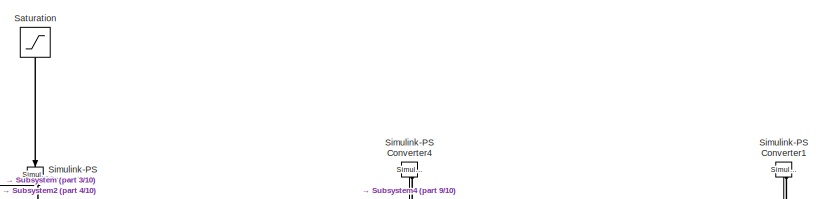
[diagram: root canvas - part 1/10, top center region]
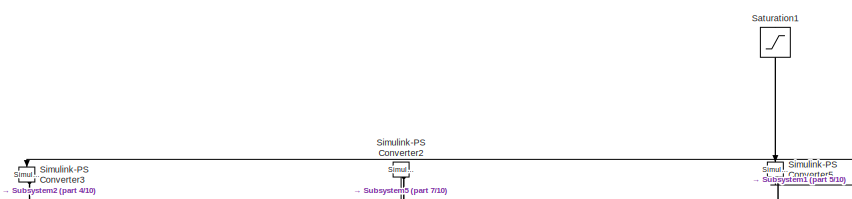
[diagram: root canvas - part 2/10, top center region]
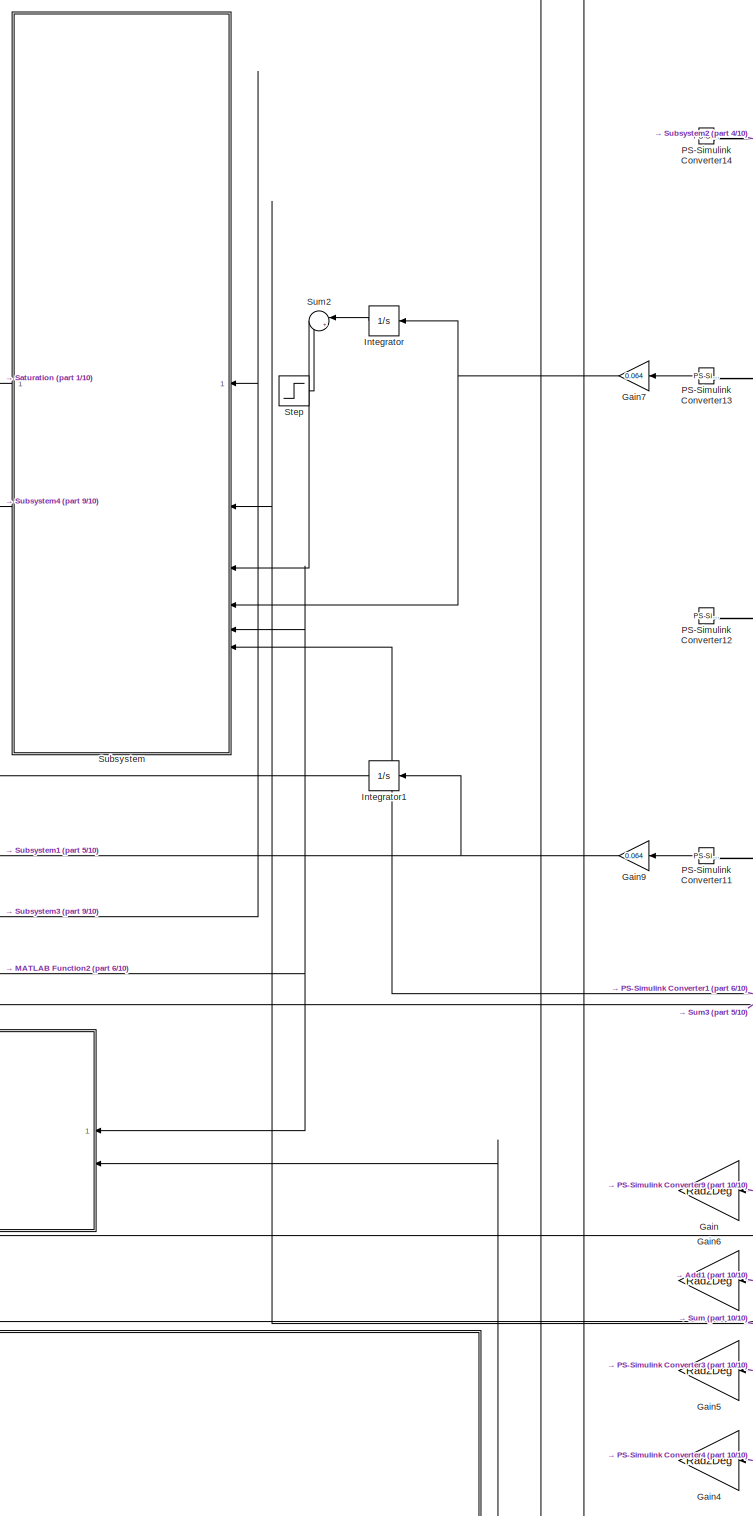
[diagram: root canvas - part 3/10, middle left region]
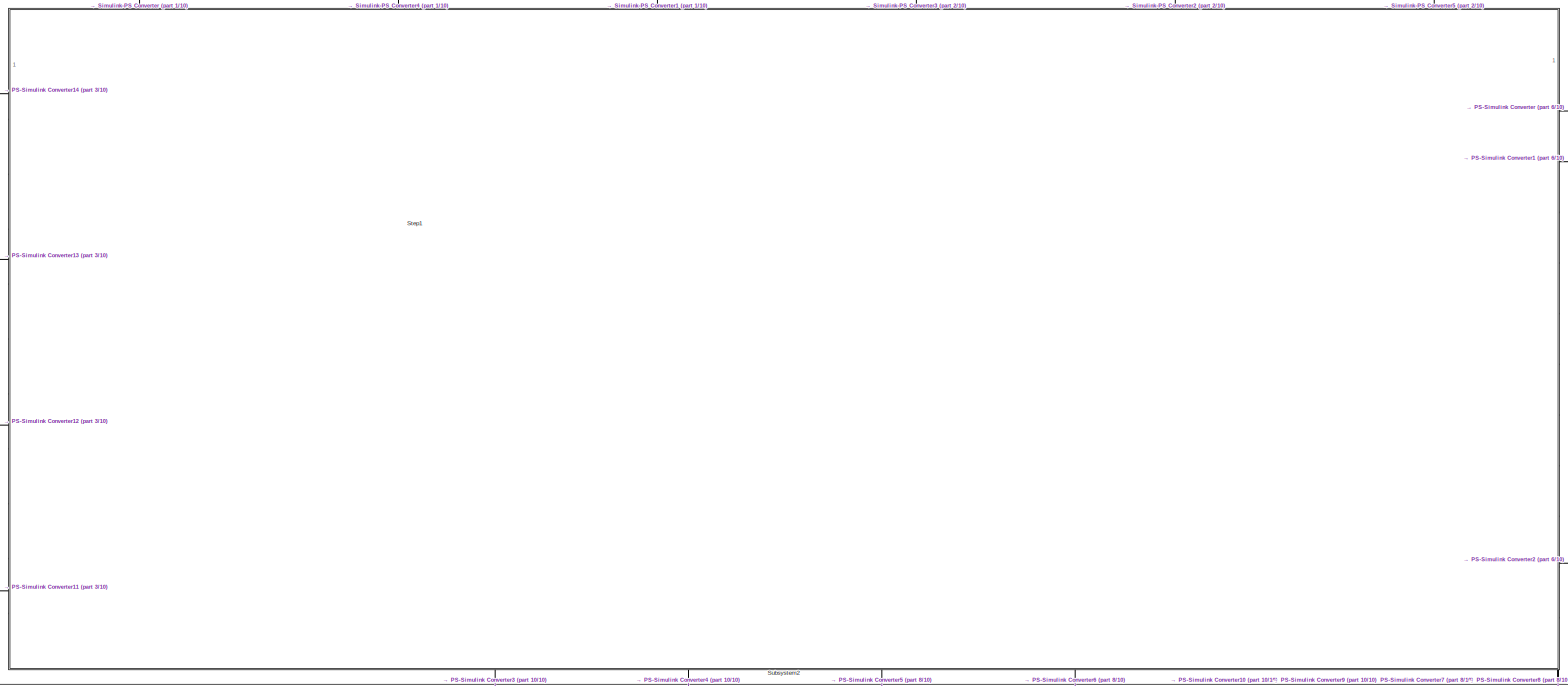
[diagram: root canvas - part 4/10, central region]
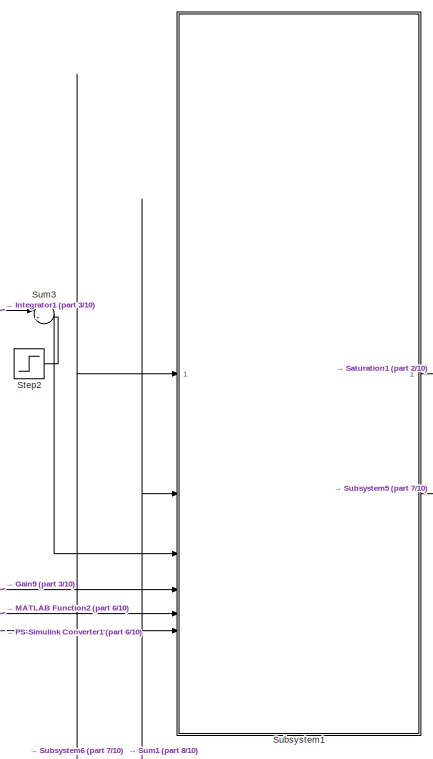
[diagram: root canvas - part 5/10, top right region]
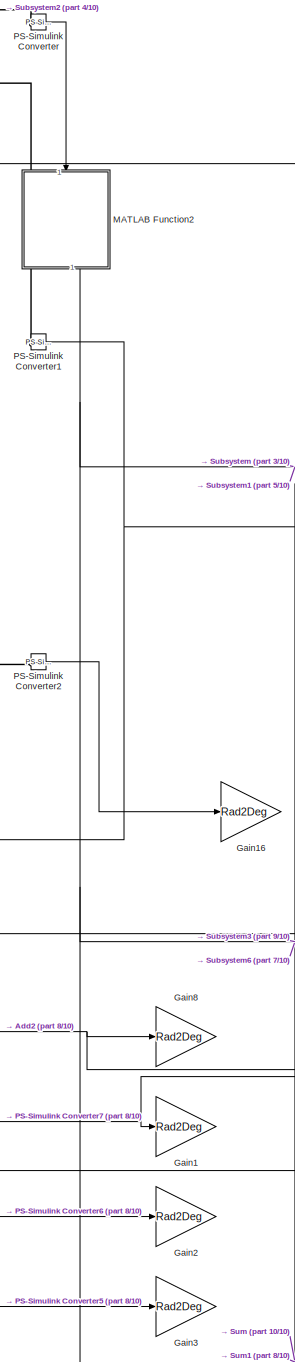
[diagram: root canvas - part 6/10, middle right region]
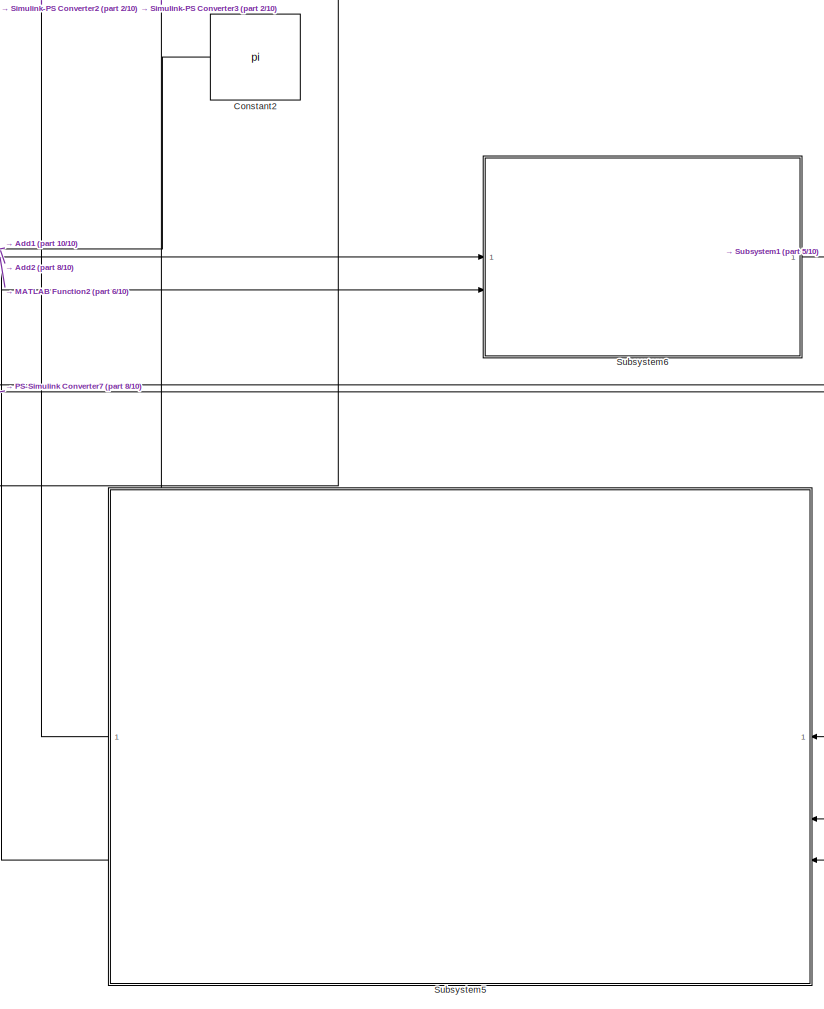
[diagram: root canvas - part 7/10, bottom right region]
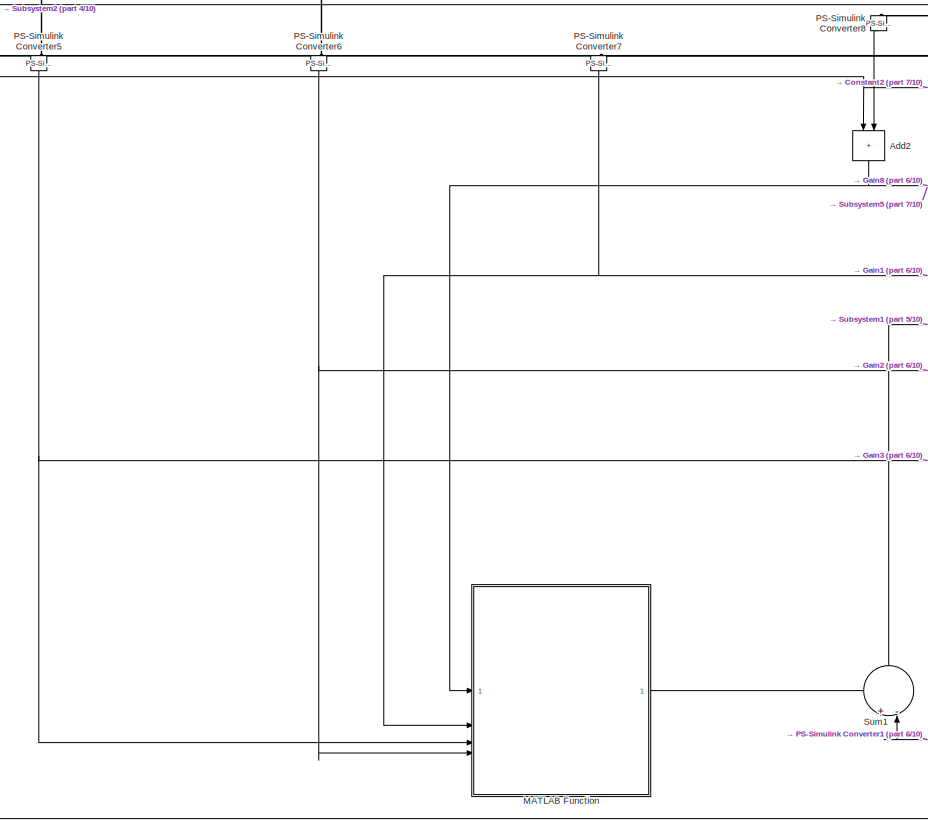
[diagram: root canvas - part 8/10, bottom center region]
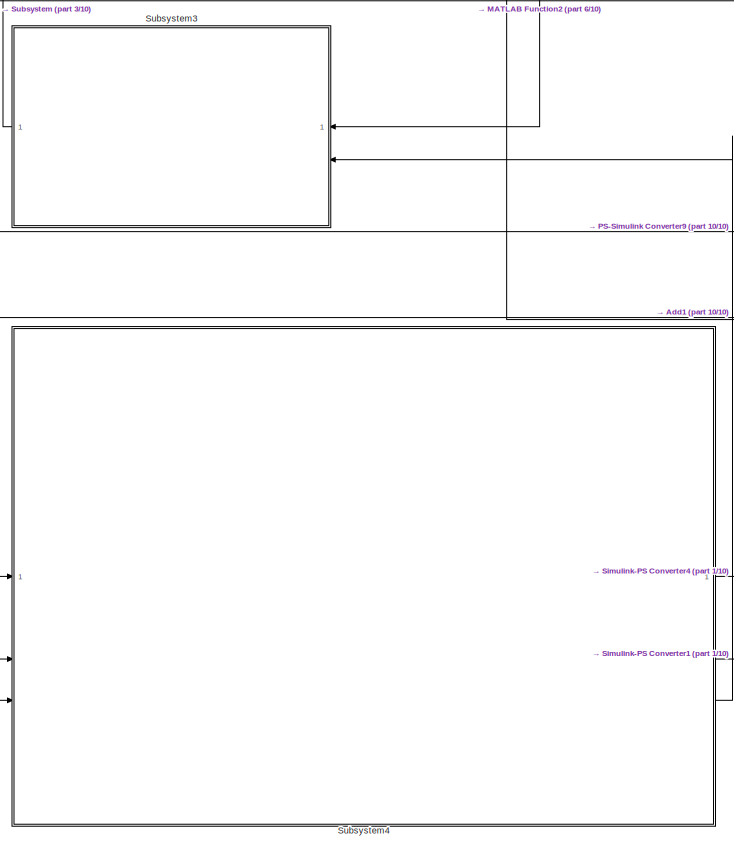
[diagram: root canvas - part 9/10, bottom left region]
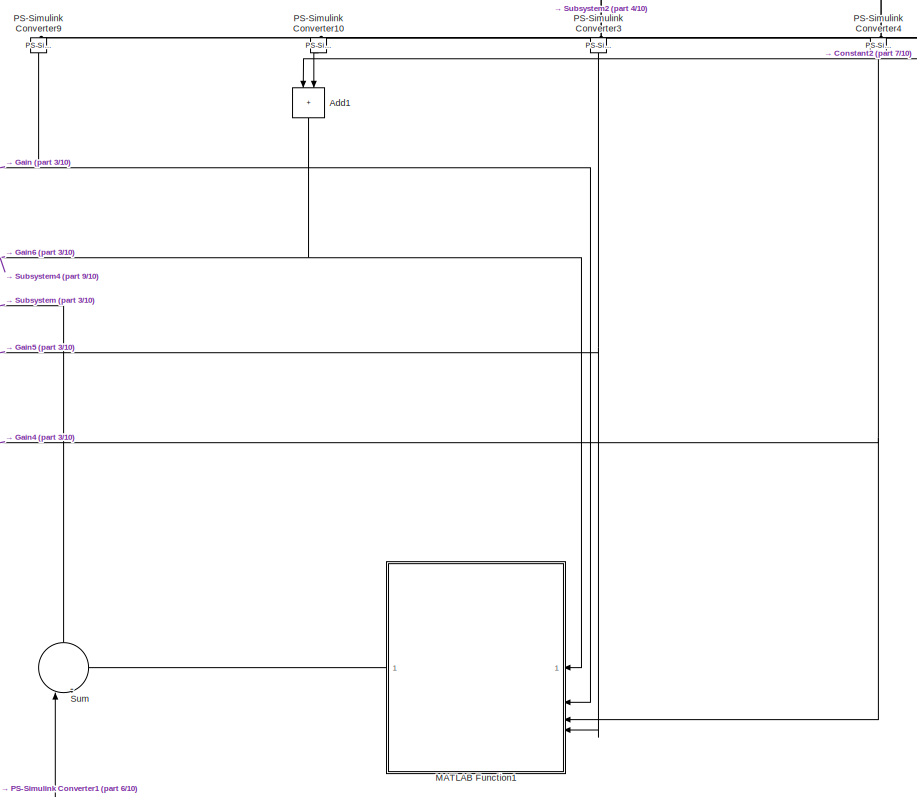
[diagram: root canvas - part 10/10, bottom center region]
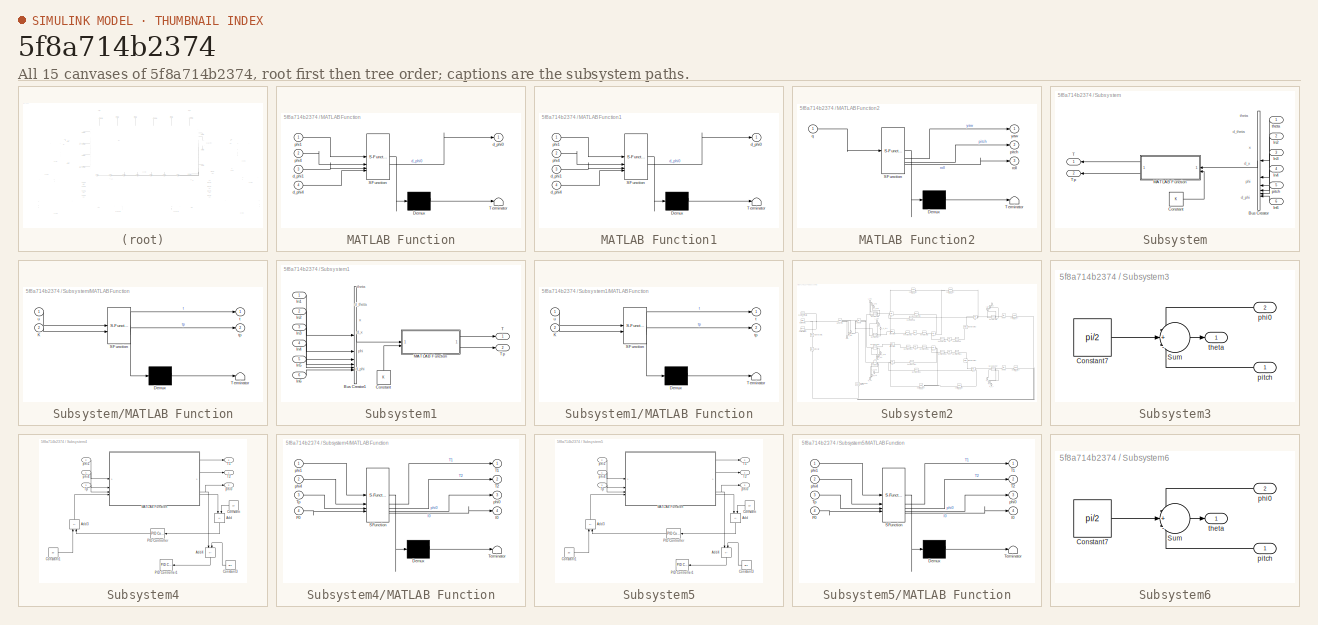
[diagram: thumbnail index - all 15 canvases of the model, root first then tree order]
MODEL slx_5f8a714b2374
KIND model
CONFIG AbsTol = auto
CONFIG EnableMultiTasking = off
CONFIG FixedStep = 0.0001
CONFIG MaxStep = auto
CONFIG MinStep = auto
CONFIG RelTol = 1e-3
CONFIG SampleTimeConstraint = Unconstrained
CONFIG SolverName = FixedStepAuto
CONFIG StartTime = 0.0
CONFIG StopTime = 30
WORKSPACE source: mxarray member
WORKSPACE Deg2Rad = 0.0174533
WORKSPACE Rad2Deg = 57.2957795
BLOCK [Sum] Add1
  IconShape = rectangular
  Inputs = +|+
  NameLocation = left
BLOCK [Sum] Add2
  IconShape = rectangular
  Inputs = +|+
  NameLocation = left
BLOCK [Constant] Constant2
  NameLocation = top
  Value = pi
BLOCK [Gain] Gain
  Gain = Rad2Deg
  NameLocation = top
BLOCK [Gain] Gain1
  Gain = Rad2Deg
BLOCK [Gain] Gain16
  Gain = Rad2Deg
BLOCK [Gain] Gain2
  Gain = Rad2Deg
BLOCK [Gain] Gain3
  Gain = Rad2Deg
BLOCK [Gain] Gain4
  Gain = Rad2Deg
  NameLocation = top
BLOCK [Gain] Gain5
  Gain = Rad2Deg
  NameLocation = top
BLOCK [Gain] Gain6
  Gain = Rad2Deg
  NameLocation = top
BLOCK [Gain] Gain7
  Gain = 0.064
  NameLocation = top
BLOCK [Gain] Gain8
  Gain = Rad2Deg
BLOCK [Gain] Gain9
  Gain = 0.064
  NameLocation = top
BLOCK [Integrator] Integrator
  NameLocation = top
BLOCK [Integrator] Integrator1
  NameLocation = top
BLOCK [SubSystem] MATLAB Function
  ErrorFcn = Stateflow.Translate.translate
  PermitHierarchicalResolution = ExplicitOnly
  SFBlockType = MATLAB Function
  TreatAsAtomicUnit = on
BLOCK [Demux] MATLAB Function/ Demux 
  Outputs = 1
BLOCK [S-Function] MATLAB Function/ SFunction 
  EnableBusSupport = on
  FunctionName = sf_sfun
  PortCounts = [4 2]
  SFcnIsStateOwnerBlock = off
  SFunctionDeploymentMode = off
  Tag = Stateflow S-Function 1
BLOCK [Terminator] MATLAB Function/ Terminator 
BLOCK [Outport] MATLAB Function/d_phi0
BLOCK [Inport] MATLAB Function/d_phi1
  Port = 3
BLOCK [Inport] MATLAB Function/d_phi4
  Port = 4
BLOCK [Inport] MATLAB Function/phi1
BLOCK [Inport] MATLAB Function/phi4
  Port = 2
BLOCK [SubSystem] MATLAB Function1
  ErrorFcn = Stateflow.Translate.translate
  NameLocation = top
  PermitHierarchicalResolution = ExplicitOnly
  SFBlockType = MATLAB Function
  TreatAsAtomicUnit = on
BLOCK [Demux] MATLAB Function1/ Demux 
  Outputs = 1
BLOCK [S-Function] MATLAB Function1/ SFunction 
  EnableBusSupport = on
  FunctionName = sf_sfun
  PortCounts = [4 2]
  SFcnIsStateOwnerBlock = off
  SFunctionDeploymentMode = off
  Tag = Stateflow S-Function 5
BLOCK [Terminator] MATLAB Function1/ Terminator 
BLOCK [Outport] MATLAB Function1/d_phi0
BLOCK [Inport] MATLAB Function1/d_phi1
  Port = 3
BLOCK [Inport] MATLAB Function1/d_phi4
  Port = 4
BLOCK [Inport] MATLAB Function1/phi1
BLOCK [Inport] MATLAB Function1/phi4
  Port = 2
BLOCK [SubSystem] MATLAB Function2
  ErrorFcn = Stateflow.Translate.translate
  NameLocation = left
  PermitHierarchicalResolution = ExplicitOnly
  SFBlockType = MATLAB Function
  TreatAsAtomicUnit = on
BLOCK [Demux] MATLAB Function2/ Demux 
  Outputs = 1
BLOCK [S-Function] MATLAB Function2/ SFunction 
  EnableBusSupport = on
  FunctionName = sf_sfun
  PortCounts = [1 4]
  SFcnIsStateOwnerBlock = off
  SFunctionDeploymentMode = off
  Tag = Stateflow S-Function 3
BLOCK [Terminator] MATLAB Function2/ Terminator 
BLOCK [Outport] MATLAB Function2/pitch
  Port = 2
BLOCK [Inport] MATLAB Function2/q
BLOCK [Outport] MATLAB Function2/roll
  Port = 3
BLOCK [Outport] MATLAB Function2/yaw
BLOCK [Reference] PS-Simulink Converter  REF=nesl_utility/PS-Simulink
Converter
  SourceBlock = nesl_utility/PS-Simulink\nConverter
  SourceType = PS-Simulink\nConverter
BLOCK [Reference] PS-Simulink Converter1  REF=nesl_utility/PS-Simulink
Converter
  SourceBlock = nesl_utility/PS-Simulink\nConverter
  SourceType = PS-Simulink\nConverter
BLOCK [Reference] PS-Simulink Converter10  REF=nesl_utility/PS-Simulink
Converter
  NameLocation = left
  SourceBlock = nesl_utility/PS-Simulink\nConverter
  SourceType = PS-Simulink\nConverter
BLOCK [Reference] PS-Simulink Converter11  REF=nesl_utility/PS-Simulink
Converter
  NameLocation = top
  SourceBlock = nesl_utility/PS-Simulink\nConverter
  SourceType = PS-Simulink\nConverter
BLOCK [Reference] PS-Simulink Converter12  REF=nesl_utility/PS-Simulink
Converter
  NameLocation = top
  SourceBlock = nesl_utility/PS-Simulink\nConverter
  SourceType = PS-Simulink\nConverter
BLOCK [Reference] PS-Simulink Converter13  REF=nesl_utility/PS-Simulink
Converter
  NameLocation = top
  SourceBlock = nesl_utility/PS-Simulink\nConverter
  SourceType = PS-Simulink\nConverter
BLOCK [Reference] PS-Simulink Converter14  REF=nesl_utility/PS-Simulink
Converter
  NameLocation = top
  SourceBlock = nesl_utility/PS-Simulink\nConverter
  SourceType = PS-Simulink\nConverter
BLOCK [Reference] PS-Simulink Converter2  REF=nesl_utility/PS-Simulink
Converter
  SourceBlock = nesl_utility/PS-Simulink\nConverter
  SourceType = PS-Simulink\nConverter
BLOCK [Reference] PS-Simulink Converter3  REF=nesl_utility/PS-Simulink
Converter
  NameLocation = left
  SourceBlock = nesl_utility/PS-Simulink\nConverter
  SourceType = PS-Simulink\nConverter
BLOCK [Reference] PS-Simulink Converter4  REF=nesl_utility/PS-Simulink
Converter
  NameLocation = left
  SourceBlock = nesl_utility/PS-Simulink\nConverter
  SourceType = PS-Simulink\nConverter
BLOCK [Reference] PS-Simulink Converter5  REF=nesl_utility/PS-Simulink
Converter
  NameLocation = left
  SourceBlock = nesl_utility/PS-Simulink\nConverter
  SourceType = PS-Simulink\nConverter
BLOCK [Reference] PS-Simulink Converter6  REF=nesl_utility/PS-Simulink
Converter
  NameLocation = left
  SourceBlock = nesl_utility/PS-Simulink\nConverter
  SourceType = PS-Simulink\nConverter
BLOCK [Reference] PS-Simulink Converter7  REF=nesl_utility/PS-Simulink
Converter
  NameLocation = left
  SourceBlock = nesl_utility/PS-Simulink\nConverter
  SourceType = PS-Simulink\nConverter
BLOCK [Reference] PS-Simulink Converter8  REF=nesl_utility/PS-Simulink
Converter
  NameLocation = left
  SourceBlock = nesl_utility/PS-Simulink\nConverter
  SourceType = PS-Simulink\nConverter
BLOCK [Reference] PS-Simulink Converter9  REF=nesl_utility/PS-Simulink
Converter
  NameLocation = left
  SourceBlock = nesl_utility/PS-Simulink\nConverter
  SourceType = PS-Simulink\nConverter
BLOCK [Saturate] Saturation
  LowerLimit = -2
  NameLocation = left
  UpperLimit = 2
BLOCK [Saturate] Saturation1
  LowerLimit = -2
  NameLocation = left
  UpperLimit = 2
BLOCK [Reference] Simulink-PS Converter  REF=nesl_utility/Simulink-PS
Converter
  NameLocation = left
  SourceBlock = nesl_utility/Simulink-PS\nConverter
  SourceType = Simulink-PS\nConverter
BLOCK [Reference] Simulink-PS Converter1  REF=nesl_utility/Simulink-PS
Converter
  NameLocation = left
  SourceBlock = nesl_utility/Simulink-PS\nConverter
  SourceType = Simulink-PS\nConverter
BLOCK [Reference] Simulink-PS Converter2  REF=nesl_utility/Simulink-PS
Converter
  NameLocation = left
  SourceBlock = nesl_utility/Simulink-PS\nConverter
  SourceType = Simulink-PS\nConverter
BLOCK [Reference] Simulink-PS Converter3  REF=nesl_utility/Simulink-PS
Converter
  NameLocation = left
  SourceBlock = nesl_utility/Simulink-PS\nConverter
  SourceType = Simulink-PS\nConverter
BLOCK [Reference] Simulink-PS Converter4  REF=nesl_utility/Simulink-PS
Converter
  NameLocation = left
  SourceBlock = nesl_utility/Simulink-PS\nConverter
  SourceType = Simulink-PS\nConverter
BLOCK [Reference] Simulink-PS Converter5  REF=nesl_utility/Simulink-PS
Converter
  NameLocation = left
  SourceBlock = nesl_utility/Simulink-PS\nConverter
  SourceType = Simulink-PS\nConverter
BLOCK [Step] Step
  After = -1
  SampleTime = 0
  Time = 3
BLOCK [Step] Step1
  After = -1
  SampleTime = 0
  Time = 3
BLOCK [Step] Step2
  After = -1
  SampleTime = 0
  Time = 3
BLOCK [SubSystem] Subsystem
BLOCK [BusCreator] Subsystem/Bus Creator
  DisplayOption = bar
  InheritFromInputs = on
  Inputs = 6
  NameLocation = top
BLOCK [Constant] Subsystem/Constant
  Value = K
BLOCK [Inport] Subsystem/In2
  Port = 2
BLOCK [Inport] Subsystem/In3
  Port = 3
BLOCK [Inport] Subsystem/In4
  Port = 4
BLOCK [Inport] Subsystem/In6
  Port = 6
BLOCK [SubSystem] Subsystem/MATLAB Function
  ErrorFcn = Stateflow.Translate.translate
  NameLocation = top
  PermitHierarchicalResolution = ExplicitOnly
  SFBlockType = MATLAB Function
  TreatAsAtomicUnit = on
BLOCK [Demux] Subsystem/MATLAB Function/ Demux 
  Outputs = 1
BLOCK [S-Function] Subsystem/MATLAB Function/ SFunction 
  EnableBusSupport = on
  FunctionName = sf_sfun
  PortCounts = [2 3]
  SFcnIsStateOwnerBlock = off
  SFunctionDeploymentMode = off
  Tag = Stateflow S-Function 6
BLOCK [Terminator] Subsystem/MATLAB Function/ Terminator 
BLOCK [Inport] Subsystem/MATLAB Function/K
  Port = 2
BLOCK [Outport] Subsystem/MATLAB Function/t
BLOCK [Outport] Subsystem/MATLAB Function/tp
  Port = 2
BLOCK [Inport] Subsystem/MATLAB Function/u
BLOCK [Outport] Subsystem/T
  NameLocation = top
BLOCK [Outport] Subsystem/Tp
  NameLocation = top
  Port = 2
BLOCK [Inport] Subsystem/pitch
  Port = 5
BLOCK [Inport] Subsystem/theta
BLOCK [SubSystem] Subsystem1
BLOCK [BusCreator] Subsystem1/Bus Creator1
  DisplayOption = bar
  InheritFromInputs = on
  Inputs = 6
BLOCK [Constant] Subsystem1/Constant
  NameLocation = right
  Value = K
BLOCK [Inport] Subsystem1/In1
BLOCK [Inport] Subsystem1/In2
  Port = 2
BLOCK [Inport] Subsystem1/In3
  Port = 3
BLOCK [Inport] Subsystem1/In4
  Port = 4
BLOCK [Inport] Subsystem1/In5
  Port = 5
BLOCK [Inport] Subsystem1/In6
  Port = 6
BLOCK [SubSystem] Subsystem1/MATLAB Function
  ErrorFcn = Stateflow.Translate.translate
  PermitHierarchicalResolution = ExplicitOnly
  SFBlockType = MATLAB Function
  TreatAsAtomicUnit = on
BLOCK [Demux] Subsystem1/MATLAB Function/ Demux 
  Outputs = 1
BLOCK [S-Function] Subsystem1/MATLAB Function/ SFunction 
  EnableBusSupport = on
  FunctionName = sf_sfun
  PortCounts = [2 3]
  SFcnIsStateOwnerBlock = off
  SFunctionDeploymentMode = off
  Tag = Stateflow S-Function 7
BLOCK [Terminator] Subsystem1/MATLAB Function/ Terminator 
BLOCK [Inport] Subsystem1/MATLAB Function/K
  Port = 2
BLOCK [Outport] Subsystem1/MATLAB Function/t
BLOCK [Outport] Subsystem1/MATLAB Function/tp
  Port = 2
BLOCK [Inport] Subsystem1/MATLAB Function/u
BLOCK [Outport] Subsystem1/T
BLOCK [Outport] Subsystem1/Tp
  Port = 2
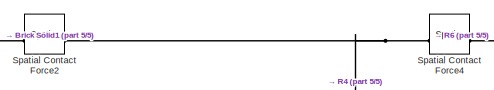
[diagram: Subsystem2 - part 1/5, top center region]
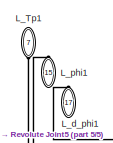
[diagram: Subsystem2 - part 2/5, top left region]
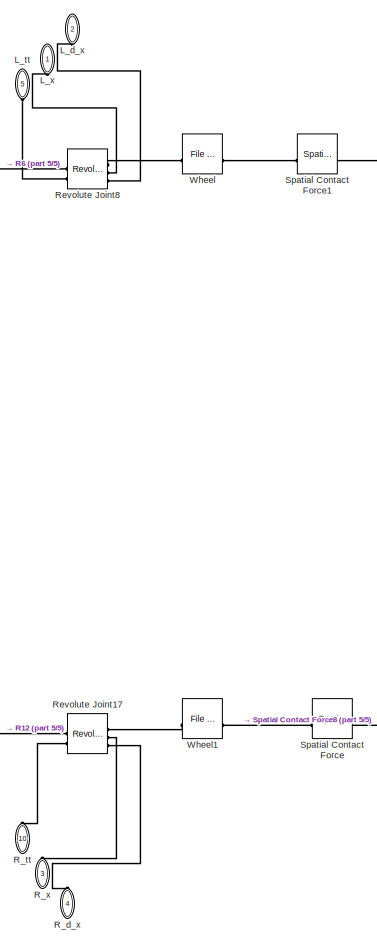
[diagram: Subsystem2 - part 3/5, right side, full height]
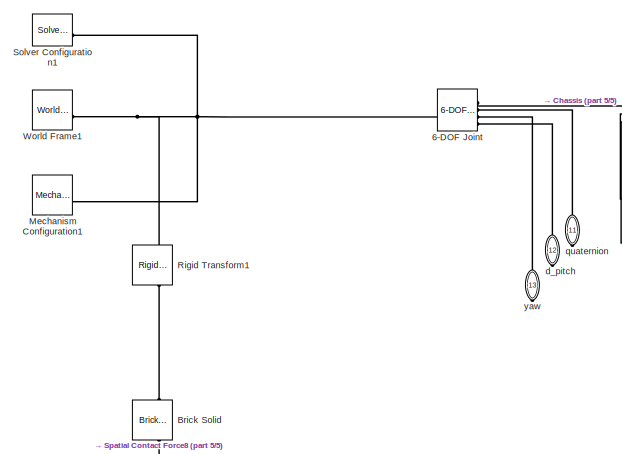
[diagram: Subsystem2 - part 4/5, middle left region]
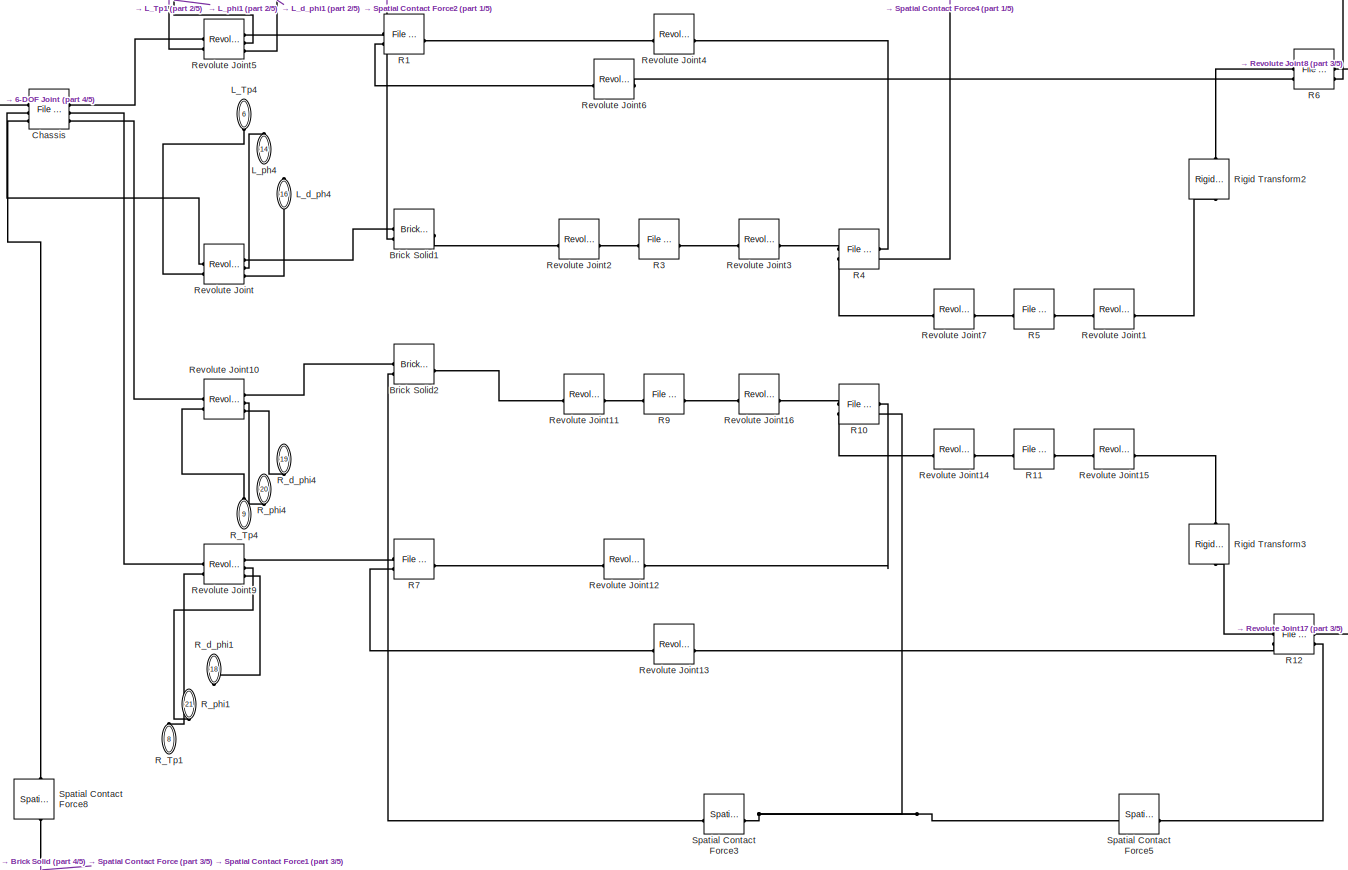
[diagram: Subsystem2 - part 5/5, central region]
BLOCK [SubSystem] Subsystem2
  PortSchema = {"entries":[{"content":{"sides":[{"content":{"connectorIds":["LConn1","LConn2","LConn3","LConn4"]},"type":"ConnectorPlacement.EquallySpacedRectSide","uuid":"241f321a-7666-4cba-8665-095b31e601a6"},{"content":{"connectorIds":["RConn1","RConn2","RConn3"],"side":"RIGHT"},"type":"ConnectorPlacement.EquallySpacedRectSide","uuid":"d9e9ebe8-43ef-42e8-942a-696afc462c17"},{"content":{"connectorIds":["LConn5...<+561ch>
BLOCK [Reference] Subsystem2/6-DOF Joint  REF=sm_lib/Joints/6-DOF Joint
  SourceBlock = sm_lib/Joints/6-DOF Joint
  SourceType = 6-DOF Joint
BLOCK [Reference] Subsystem2/Brick Solid  REF=sm_lib/Body Elements/Brick Solid
  NameLocation = right
  SourceBlock = sm_lib/Body Elements/Brick Solid
  SourceType = Brick Solid
BLOCK [Reference] Subsystem2/Brick Solid1  REF=sm_lib/Body Elements/Brick Solid
  SourceBlock = sm_lib/Body Elements/Brick Solid
  SourceType = Brick Solid
BLOCK [Reference] Subsystem2/Brick Solid2  REF=sm_lib/Body Elements/Brick Solid
  SourceBlock = sm_lib/Body Elements/Brick Solid
  SourceType = Brick Solid
BLOCK [Reference] Subsystem2/Chassis  REF=sm_lib/Body Elements/File Solid
  NameLocation = top
  SourceBlock = sm_lib/Body Elements/File Solid
  SourceType = File Solid
BLOCK [PMIOPort] Subsystem2/L_Tp1 
  NameLocation = right
  Port = 7
  Side = Left
BLOCK [PMIOPort] Subsystem2/L_Tp4
  NameLocation = right
  Port = 6
  Side = Left
BLOCK [PMIOPort] Subsystem2/L_d_ph4
  NameLocation = right
  Port = 16
  Side = Right
BLOCK [PMIOPort] Subsystem2/L_d_phi1
  NameLocation = right
  Port = 17
  Side = Right
BLOCK [PMIOPort] Subsystem2/L_d_x
  NameLocation = left
  Port = 2
  Side = Left
BLOCK [PMIOPort] Subsystem2/L_ph4
  NameLocation = right
  Port = 14
  Side = Right
BLOCK [PMIOPort] Subsystem2/L_phi1
  NameLocation = right
  Port = 15
  Side = Right
BLOCK [PMIOPort] Subsystem2/L_tt
  NameLocation = left
  Port = 5
  Side = Left
BLOCK [PMIOPort] Subsystem2/L_x
  NameLocation = left
  Side = Left
BLOCK [Reference] Subsystem2/Mechanism Configuration1  REF=sm_lib/Utilities/Mechanism
Configuration
  SourceBlock = sm_lib/Utilities/Mechanism\nConfiguration
  SourceType = Mechanism\nConfiguration
BLOCK [Reference] Subsystem2/R1  REF=sm_lib/Body Elements/File Solid
  SourceBlock = sm_lib/Body Elements/File Solid
  SourceType = File Solid
BLOCK [Reference] Subsystem2/R10  REF=sm_lib/Body Elements/File Solid
  SourceBlock = sm_lib/Body Elements/File Solid
  SourceType = File Solid
BLOCK [Reference] Subsystem2/R11  REF=sm_lib/Body Elements/File Solid
  SourceBlock = sm_lib/Body Elements/File Solid
  SourceType = File Solid
BLOCK [Reference] Subsystem2/R12  REF=sm_lib/Body Elements/File Solid
  SourceBlock = sm_lib/Body Elements/File Solid
  SourceType = File Solid
BLOCK [Reference] Subsystem2/R3  REF=sm_lib/Body Elements/File Solid
  SourceBlock = sm_lib/Body Elements/File Solid
  SourceType = File Solid
BLOCK [Reference] Subsystem2/R4  REF=sm_lib/Body Elements/File Solid
  SourceBlock = sm_lib/Body Elements/File Solid
  SourceType = File Solid
BLOCK [Reference] Subsystem2/R5  REF=sm_lib/Body Elements/File Solid
  SourceBlock = sm_lib/Body Elements/File Solid
  SourceType = File Solid
BLOCK [Reference] Subsystem2/R6  REF=sm_lib/Body Elements/File Solid
  SourceBlock = sm_lib/Body Elements/File Solid
  SourceType = File Solid
BLOCK [Reference] Subsystem2/R7  REF=sm_lib/Body Elements/File Solid
  SourceBlock = sm_lib/Body Elements/File Solid
  SourceType = File Solid
BLOCK [Reference] Subsystem2/R9  REF=sm_lib/Body Elements/File Solid
  SourceBlock = sm_lib/Body Elements/File Solid
  SourceType = File Solid
BLOCK [PMIOPort] Subsystem2/R_Tp1
  NameLocation = right
  Port = 8
  Side = Left
BLOCK [PMIOPort] Subsystem2/R_Tp4
  NameLocation = right
  Port = 9
  Side = Left
BLOCK [PMIOPort] Subsystem2/R_d_phi1
  NameLocation = right
  Port = 18
  Side = Right
BLOCK [PMIOPort] Subsystem2/R_d_phi4
  NameLocation = right
  Port = 19
  Side = Right
BLOCK [PMIOPort] Subsystem2/R_d_x
  NameLocation = left
  Port = 4
  Side = Left
BLOCK [PMIOPort] Subsystem2/R_phi1
  NameLocation = right
  Port = 21
  Side = Right
BLOCK [PMIOPort] Subsystem2/R_phi4
  NameLocation = right
  Port = 20
  Side = Right
BLOCK [PMIOPort] Subsystem2/R_tt
  NameLocation = left
  Port = 10
  Side = Left
BLOCK [PMIOPort] Subsystem2/R_x
  NameLocation = left
  Port = 3
  Side = Left
BLOCK [Reference] Subsystem2/Revolute Joint  REF=sm_lib/Joints/Revolute Joint
  SourceBlock = sm_lib/Joints/Revolute Joint
  SourceType = Revolute Joint
BLOCK [Reference] Subsystem2/Revolute Joint1  REF=sm_lib/Joints/Revolute Joint
  SourceBlock = sm_lib/Joints/Revolute Joint
  SourceType = Revolute Joint
BLOCK [Reference] Subsystem2/Revolute Joint10  REF=sm_lib/Joints/Revolute Joint
  SourceBlock = sm_lib/Joints/Revolute Joint
  SourceType = Revolute Joint
BLOCK [Reference] Subsystem2/Revolute Joint11  REF=sm_lib/Joints/Revolute Joint
  SourceBlock = sm_lib/Joints/Revolute Joint
  SourceType = Revolute Joint
BLOCK [Reference] Subsystem2/Revolute Joint12  REF=sm_lib/Joints/Revolute Joint
  SourceBlock = sm_lib/Joints/Revolute Joint
  SourceType = Revolute Joint
BLOCK [Reference] Subsystem2/Revolute Joint13  REF=sm_lib/Joints/Revolute Joint
  SourceBlock = sm_lib/Joints/Revolute Joint
  SourceType = Revolute Joint
BLOCK [Reference] Subsystem2/Revolute Joint14  REF=sm_lib/Joints/Revolute Joint
  SourceBlock = sm_lib/Joints/Revolute Joint
  SourceType = Revolute Joint
BLOCK [Reference] Subsystem2/Revolute Joint15  REF=sm_lib/Joints/Revolute Joint
  SourceBlock = sm_lib/Joints/Revolute Joint
  SourceType = Revolute Joint
BLOCK [Reference] Subsystem2/Revolute Joint16  REF=sm_lib/Joints/Revolute Joint
  SourceBlock = sm_lib/Joints/Revolute Joint
  SourceType = Revolute Joint
BLOCK [Reference] Subsystem2/Revolute Joint17  REF=sm_lib/Joints/Revolute Joint
  SourceBlock = sm_lib/Joints/Revolute Joint
  SourceType = Revolute Joint
BLOCK [Reference] Subsystem2/Revolute Joint2  REF=sm_lib/Joints/Revolute Joint
  SourceBlock = sm_lib/Joints/Revolute Joint
  SourceType = Revolute Joint
BLOCK [Reference] Subsystem2/Revolute Joint3  REF=sm_lib/Joints/Revolute Joint
  SourceBlock = sm_lib/Joints/Revolute Joint
  SourceType = Revolute Joint
BLOCK [Reference] Subsystem2/Revolute Joint4  REF=sm_lib/Joints/Revolute Joint
  SourceBlock = sm_lib/Joints/Revolute Joint
  SourceType = Revolute Joint
BLOCK [Reference] Subsystem2/Revolute Joint5  REF=sm_lib/Joints/Revolute Joint
  SourceBlock = sm_lib/Joints/Revolute Joint
  SourceType = Revolute Joint
BLOCK [Reference] Subsystem2/Revolute Joint6  REF=sm_lib/Joints/Revolute Joint
  SourceBlock = sm_lib/Joints/Revolute Joint
  SourceType = Revolute Joint
BLOCK [Reference] Subsystem2/Revolute Joint7  REF=sm_lib/Joints/Revolute Joint
  SourceBlock = sm_lib/Joints/Revolute Joint
  SourceType = Revolute Joint
BLOCK [Reference] Subsystem2/Revolute Joint8  REF=sm_lib/Joints/Revolute Joint
  SourceBlock = sm_lib/Joints/Revolute Joint
  SourceType = Revolute Joint
BLOCK [Reference] Subsystem2/Revolute Joint9  REF=sm_lib/Joints/Revolute Joint
  SourceBlock = sm_lib/Joints/Revolute Joint
  SourceType = Revolute Joint
BLOCK [Reference] Subsystem2/Rigid Transform1  REF=sm_lib/Frames and
Transforms/Rigid
Transform
  NameLocation = left
  SourceBlock = sm_lib/Frames and\nTransforms/Rigid\nTransform
  SourceType = Rigid\nTransform
BLOCK [Reference] Subsystem2/Rigid Transform2  REF=sm_lib/Frames and
Transforms/Rigid
Transform
  NameLocation = left
  SourceBlock = sm_lib/Frames and\nTransforms/Rigid\nTransform
  SourceType = Rigid\nTransform
BLOCK [Reference] Subsystem2/Rigid Transform3  REF=sm_lib/Frames and
Transforms/Rigid
Transform
  NameLocation = right
  SourceBlock = sm_lib/Frames and\nTransforms/Rigid\nTransform
  SourceType = Rigid\nTransform
BLOCK [Reference] Subsystem2/Solver Configuration1  REF=nesl_utility/Solver
Configuration
  SourceBlock = nesl_utility/Solver\nConfiguration
  SourceType = Solver\nConfiguration
BLOCK [Reference] Subsystem2/Spatial Contact Force  REF=sm_lib/Forces and
Torques/Spatial
Contact Force
  SourceBlock = sm_lib/Forces and\nTorques/Spatial\nContact Force
  SourceType = Spatial\nContact Force
BLOCK [Reference] Subsystem2/Spatial Contact Force1  REF=sm_lib/Forces and
Torques/Spatial
Contact Force
  SourceBlock = sm_lib/Forces and\nTorques/Spatial\nContact Force
  SourceType = Spatial\nContact Force
BLOCK [Reference] Subsystem2/Spatial Contact Force2  REF=sm_lib/Forces and
Torques/Spatial
Contact Force
  SourceBlock = sm_lib/Forces and\nTorques/Spatial\nContact Force
  SourceType = Spatial\nContact Force
BLOCK [Reference] Subsystem2/Spatial Contact Force3  REF=sm_lib/Forces and
Torques/Spatial
Contact Force
  SourceBlock = sm_lib/Forces and\nTorques/Spatial\nContact Force
  SourceType = Spatial\nContact Force
BLOCK [Reference] Subsystem2/Spatial Contact Force4  REF=sm_lib/Forces and
Torques/Spatial
Contact Force
  SourceBlock = sm_lib/Forces and\nTorques/Spatial\nContact Force
  SourceType = Spatial\nContact Force
BLOCK [Reference] Subsystem2/Spatial Contact Force5  REF=sm_lib/Forces and
Torques/Spatial
Contact Force
  SourceBlock = sm_lib/Forces and\nTorques/Spatial\nContact Force
  SourceType = Spatial\nContact Force
BLOCK [Reference] Subsystem2/Spatial Contact Force8  REF=sm_lib/Forces and
Torques/Spatial
Contact Force
  NameLocation = left
  SourceBlock = sm_lib/Forces and\nTorques/Spatial\nContact Force
  SourceType = Spatial\nContact Force
BLOCK [Reference] Subsystem2/Wheel  REF=sm_lib/Body Elements/File Solid
  SourceBlock = sm_lib/Body Elements/File Solid
  SourceType = File Solid
BLOCK [Reference] Subsystem2/Wheel1  REF=sm_lib/Body Elements/File Solid
  SourceBlock = sm_lib/Body Elements/File Solid
  SourceType = File Solid
BLOCK [Reference] Subsystem2/World Frame1  REF=sm_lib/Frames and
Transforms/World Frame
  SourceBlock = sm_lib/Frames and\nTransforms/World Frame
  SourceType = World Frame
BLOCK [PMIOPort] Subsystem2/d_pitch
  NameLocation = right
  Port = 12
  Side = Right
BLOCK [PMIOPort] Subsystem2/quaternion
  NameLocation = right
  Port = 11
  Side = Right
BLOCK [PMIOPort] Subsystem2/yaw
  NameLocation = right
  Port = 13
  Side = Right
BLOCK [SubSystem] Subsystem3
  NameLocation = top
BLOCK [Constant] Subsystem3/Constant7
  Value = pi/2
BLOCK [Sum] Subsystem3/Sum
  Inputs = |+|-|-|
BLOCK [Inport] Subsystem3/phi0
  NameLocation = top
  Port = 2
BLOCK [Inport] Subsystem3/pitch
BLOCK [Outport] Subsystem3/theta
BLOCK [SubSystem] Subsystem4
BLOCK [Sum] Subsystem4/Add
  IconShape = rectangular
  Inputs = +|-
  NameLocation = left
BLOCK [Sum] Subsystem4/Add3
  IconShape = rectangular
  Inputs = +-
  NameLocation = right
BLOCK [Sum] Subsystem4/Add4
  IconShape = rectangular
  Inputs = +|-
  NameLocation = left
BLOCK [Constant] Subsystem4/Constant
  NameLocation = top
  Value = L0
BLOCK [Constant] Subsystem4/Constant1
  Value = 30
BLOCK [Constant] Subsystem4/Constant3
  NameLocation = top
  Value = pi/2
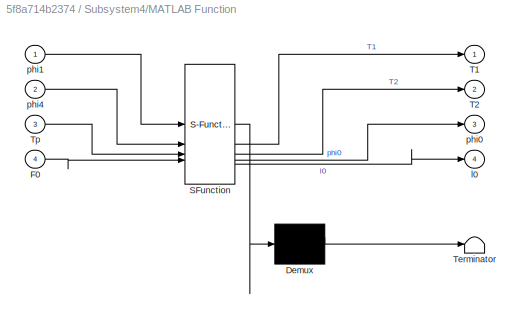
BLOCK [SubSystem] Subsystem4/MATLAB Function
  ErrorFcn = Stateflow.Translate.translate
  PermitHierarchicalResolution = ExplicitOnly
  SFBlockType = MATLAB Function
  TreatAsAtomicUnit = on
BLOCK [Demux] Subsystem4/MATLAB Function/ Demux 
  Outputs = 1
BLOCK [S-Function] Subsystem4/MATLAB Function/ SFunction 
  EnableBusSupport = on
  FunctionName = sf_sfun
  PortCounts = [4 5]
  SFcnIsStateOwnerBlock = off
  SFunctionDeploymentMode = off
  Tag = Stateflow S-Function 2
BLOCK [Terminator] Subsystem4/MATLAB Function/ Terminator 
BLOCK [Inport] Subsystem4/MATLAB Function/F0
  Port = 4
BLOCK [Outport] Subsystem4/MATLAB Function/T1
BLOCK [Outport] Subsystem4/MATLAB Function/T2
  Port = 2
BLOCK [Inport] Subsystem4/MATLAB Function/Tp
  Port = 3
BLOCK [Outport] Subsystem4/MATLAB Function/l0
  Port = 4
BLOCK [Outport] Subsystem4/MATLAB Function/phi0
  Port = 3
BLOCK [Inport] Subsystem4/MATLAB Function/phi1
BLOCK [Inport] Subsystem4/MATLAB Function/phi4
  Port = 2
BLOCK [Reference] Subsystem4/PID Controller  REF=slpidlib/PID Controller
  NameLocation = top
  SourceBlock = slpidlib/PID Controller
  SourceType = PID 1dof
BLOCK [Reference] Subsystem4/PID Controller1  REF=slpidlib/PID Controller
  NameLocation = top
  SourceBlock = slpidlib/PID Controller
  SourceType = PID 1dof
BLOCK [Outport] Subsystem4/T1
  Port = 2
BLOCK [Outport] Subsystem4/T2
BLOCK [Inport] Subsystem4/Tp
  Port = 3
BLOCK [Outport] Subsystem4/phi0
  NameLocation = top
  Port = 3
BLOCK [Inport] Subsystem4/phi1
  Port = 2
BLOCK [Inport] Subsystem4/phi4
BLOCK [SubSystem] Subsystem5
  NameLocation = top
BLOCK [Sum] Subsystem5/Add
  IconShape = rectangular
  Inputs = +|-
  NameLocation = left
BLOCK [Sum] Subsystem5/Add3
  IconShape = rectangular
  Inputs = +-
  NameLocation = right
BLOCK [Sum] Subsystem5/Add4
  IconShape = rectangular
  Inputs = +|-
  NameLocation = left
BLOCK [Constant] Subsystem5/Constant
  NameLocation = top
  Value = L0
BLOCK [Constant] Subsystem5/Constant1
  Value = 30
BLOCK [Constant] Subsystem5/Constant3
  NameLocation = top
  Value = pi/2
BLOCK [SubSystem] Subsystem5/MATLAB Function
  ErrorFcn = Stateflow.Translate.translate
  PermitHierarchicalResolution = ExplicitOnly
  SFBlockType = MATLAB Function
  TreatAsAtomicUnit = on
BLOCK [Demux] Subsystem5/MATLAB Function/ Demux 
  Outputs = 1
BLOCK [S-Function] Subsystem5/MATLAB Function/ SFunction 
  EnableBusSupport = on
  FunctionName = sf_sfun
  PortCounts = [4 5]
  SFcnIsStateOwnerBlock = off
  SFunctionDeploymentMode = off
  Tag = Stateflow S-Function 4
BLOCK [Terminator] Subsystem5/MATLAB Function/ Terminator 
BLOCK [Inport] Subsystem5/MATLAB Function/F0
  Port = 4
BLOCK [Outport] Subsystem5/MATLAB Function/T1
BLOCK [Outport] Subsystem5/MATLAB Function/T2
  Port = 2
BLOCK [Inport] Subsystem5/MATLAB Function/Tp
  Port = 3
BLOCK [Outport] Subsystem5/MATLAB Function/l0
  Port = 4
BLOCK [Outport] Subsystem5/MATLAB Function/phi0
  Port = 3
BLOCK [Inport] Subsystem5/MATLAB Function/phi1
BLOCK [Inport] Subsystem5/MATLAB Function/phi4
  Port = 2
BLOCK [Reference] Subsystem5/PID Controller  REF=slpidlib/PID Controller
  NameLocation = top
  SourceBlock = slpidlib/PID Controller
  SourceType = PID 1dof
BLOCK [Reference] Subsystem5/PID Controller1  REF=slpidlib/PID Controller
  NameLocation = top
  SourceBlock = slpidlib/PID Controller
  SourceType = PID 1dof
BLOCK [Outport] Subsystem5/T1
  Port = 2
BLOCK [Outport] Subsystem5/T2
BLOCK [Inport] Subsystem5/Tp
  Port = 3
BLOCK [Outport] Subsystem5/phi0
  NameLocation = top
  Port = 3
BLOCK [Inport] Subsystem5/phi1
  Port = 2
BLOCK [Inport] Subsystem5/phi4
BLOCK [SubSystem] Subsystem6
BLOCK [Constant] Subsystem6/Constant7
  Value = pi/2
BLOCK [Sum] Subsystem6/Sum
  Inputs = |+|-|-|
BLOCK [Inport] Subsystem6/phi0
  NameLocation = top
  Port = 2
BLOCK [Inport] Subsystem6/pitch
BLOCK [Outport] Subsystem6/theta
BLOCK [Sum] Sum
  Inputs = |-+
  NameLocation = right
BLOCK [Sum] Sum1
  Inputs = +-|
  NameLocation = right
BLOCK [Sum] Sum2
  Inputs = |++
  NameLocation = top
BLOCK [Sum] Sum3
  Inputs = |++
ANNOTATION Subsystem: d_phi
ANNOTATION Subsystem: d_theta
ANNOTATION Subsystem: d_x
ANNOTATION Subsystem: phi
ANNOTATION Subsystem: theta
ANNOTATION Subsystem: x
ANNOTATION Subsystem1: d_phi
ANNOTATION Subsystem1: d_theta
ANNOTATION Subsystem1: d_x
ANNOTATION Subsystem1: phi
ANNOTATION Subsystem1: theta
ANNOTATION Subsystem1: x
NET Add1:1 -> Gain6:1, MATLAB Function1:1, Subsystem4:2
NET Add2:1 -> Gain8:1, MATLAB Function:1, Subsystem5:2
NET Constant2:1 -> Add1:1, Add2:1
NET Gain7:1 -> Integrator:1, Subsystem:4
NET Gain9:1 -> Integrator1:1, Subsystem1:4
LINE Integrator1:1 -> Sum3:1
LINE Integrator:1 -> Sum2:1
LINE MATLAB Function1:1 -> Sum:2
NET MATLAB Function2:2 -> Subsystem1:5, Subsystem3:1, Subsystem6:1, Subsystem:5
LINE MATLAB Function:1 -> Sum1:1
LINE PS-Simulink Converter10:1 -> Add1:2
LINE PS-Simulink Converter11:1 -> Gain9:1
LINE PS-Simulink Converter13:1 -> Gain7:1
NET PS-Simulink Converter1:1 -> Subsystem1:6, Subsystem:6, Sum1:2, Sum:1
LINE PS-Simulink Converter2:1 -> Gain16:1
NET PS-Simulink Converter3:1 -> Gain5:1, MATLAB Function1:4
NET PS-Simulink Converter4:1 -> Gain4:1, MATLAB Function1:3
NET PS-Simulink Converter5:1 -> Gain3:1, MATLAB Function:3
NET PS-Simulink Converter6:1 -> Gain2:1, MATLAB Function:4
NET PS-Simulink Converter7:1 -> Gain1:1, MATLAB Function:2, Subsystem5:1
LINE PS-Simulink Converter8:1 -> Add2:2
NET PS-Simulink Converter9:1 -> Gain:1, MATLAB Function1:2, Subsystem4:1
LINE PS-Simulink Converter:1 -> MATLAB Function2:1
LINE Saturation1:1 -> Simulink-PS Converter5:1
LINE Saturation:1 -> Simulink-PS Converter:1
LINE Step2:1 -> Sum3:2
LINE Step:1 -> Sum2:2
LINE Subsystem/Bus Creator:1 -> Subsystem/MATLAB Function:1
LINE Subsystem/Constant:1 -> Subsystem/MATLAB Function:2
LINE Subsystem/In2:1 -> Subsystem/Bus Creator:2
LINE Subsystem/In3:1 -> Subsystem/Bus Creator:3
LINE Subsystem/In4:1 -> Subsystem/Bus Creator:4
LINE Subsystem/In6:1 -> Subsystem/Bus Creator:6
LINE Subsystem/MATLAB Function:1 -> Subsystem/T:1
LINE Subsystem/MATLAB Function:2 -> Subsystem/Tp:1
LINE Subsystem/pitch:1 -> Subsystem/Bus Creator:5
LINE Subsystem/theta:1 -> Subsystem/Bus Creator:1
LINE Subsystem1/Bus Creator1:1 -> Subsystem1/MATLAB Function:1
LINE Subsystem1/Constant:1 -> Subsystem1/MATLAB Function:2
LINE Subsystem1/In1:1 -> Subsystem1/Bus Creator1:1
LINE Subsystem1/In2:1 -> Subsystem1/Bus Creator1:2
LINE Subsystem1/In3:1 -> Subsystem1/Bus Creator1:3
LINE Subsystem1/In4:1 -> Subsystem1/Bus Creator1:4
LINE Subsystem1/In5:1 -> Subsystem1/Bus Creator1:5
LINE Subsystem1/In6:1 -> Subsystem1/Bus Creator1:6
LINE Subsystem1/MATLAB Function:1 -> Subsystem1/T:1
LINE Subsystem1/MATLAB Function:2 -> Subsystem1/Tp:1
LINE Subsystem1:1 -> Saturation1:1
LINE Subsystem1:2 -> Subsystem5:3
LINE Subsystem3/Constant7:1 -> Subsystem3/Sum:2
LINE Subsystem3/Sum:1 -> Subsystem3/theta:1
LINE Subsystem3/phi0:1 -> Subsystem3/Sum:1
LINE Subsystem3/pitch:1 -> Subsystem3/Sum:3
LINE Subsystem3:1 -> Subsystem:1
LINE Subsystem4/Add3:1 -> Subsystem4/MATLAB Function:4
LINE Subsystem4/Add4:1 -> Subsystem4/PID Controller1:1
LINE Subsystem4/Add:1 -> Subsystem4/PID Controller:1
LINE Subsystem4/Constant1:1 -> Subsystem4/Add3:1
LINE Subsystem4/Constant3:1 -> Subsystem4/Add4:2
LINE Subsystem4/Constant:1 -> Subsystem4/Add:2
LINE Subsystem4/MATLAB Function:1 -> Subsystem4/T1:1
LINE Subsystem4/MATLAB Function:2 -> Subsystem4/T2:1
NET Subsystem4/MATLAB Function:3 -> Subsystem4/Add4:1, Subsystem4/phi0:1
LINE Subsystem4/MATLAB Function:4 -> Subsystem4/Add:1
LINE Subsystem4/PID Controller:1 -> Subsystem4/Add3:2
LINE Subsystem4/Tp:1 -> Subsystem4/MATLAB Function:3
LINE Subsystem4/phi1:1 -> Subsystem4/MATLAB Function:1
LINE Subsystem4/phi4:1 -> Subsystem4/MATLAB Function:2
LINE Subsystem4:1 -> Simulink-PS Converter4:1
LINE Subsystem4:2 -> Simulink-PS Converter1:1
LINE Subsystem4:3 -> Subsystem3:2
LINE Subsystem5/Add3:1 -> Subsystem5/MATLAB Function:4
LINE Subsystem5/Add4:1 -> Subsystem5/PID Controller1:1
LINE Subsystem5/Add:1 -> Subsystem5/PID Controller:1
LINE Subsystem5/Constant1:1 -> Subsystem5/Add3:1
LINE Subsystem5/Constant3:1 -> Subsystem5/Add4:2
LINE Subsystem5/Constant:1 -> Subsystem5/Add:2
LINE Subsystem5/MATLAB Function:1 -> Subsystem5/T1:1
LINE Subsystem5/MATLAB Function:2 -> Subsystem5/T2:1
NET Subsystem5/MATLAB Function:3 -> Subsystem5/Add4:1, Subsystem5/phi0:1
LINE Subsystem5/MATLAB Function:4 -> Subsystem5/Add:1
LINE Subsystem5/PID Controller:1 -> Subsystem5/Add3:2
LINE Subsystem5/Tp:1 -> Subsystem5/MATLAB Function:3
LINE Subsystem5/phi1:1 -> Subsystem5/MATLAB Function:1
LINE Subsystem5/phi4:1 -> Subsystem5/MATLAB Function:2
LINE Subsystem5:1 -> Simulink-PS Converter2:1
LINE Subsystem5:2 -> Simulink-PS Converter3:1
LINE Subsystem5:3 -> Subsystem6:2
LINE Subsystem6/Constant7:1 -> Subsystem6/Sum:2
LINE Subsystem6/Sum:1 -> Subsystem6/theta:1
LINE Subsystem6/phi0:1 -> Subsystem6/Sum:1
LINE Subsystem6/pitch:1 -> Subsystem6/Sum:3
LINE Subsystem6:1 -> Subsystem1:1
LINE Subsystem:1 -> Saturation:1
LINE Subsystem:2 -> Subsystem4:3
LINE Sum1:1 -> Subsystem1:2
LINE Sum2:1 -> Subsystem:3
LINE Sum3:1 -> Subsystem1:3
LINE Sum:1 -> Subsystem:2
PLINE PS-Simulink Converter10:LConn1 -- Subsystem2:RConn5
PLINE PS-Simulink Converter11:LConn1 -- Subsystem2:LConn4
PLINE PS-Simulink Converter12:LConn1 -- Subsystem2:LConn3
PLINE PS-Simulink Converter13:LConn1 -- Subsystem2:LConn2
PLINE PS-Simulink Converter14:LConn1 -- Subsystem2:LConn1
PLINE PS-Simulink Converter1:LConn1 -- Subsystem2:RConn2
PLINE PS-Simulink Converter2:LConn1 -- Subsystem2:RConn3
PLINE PS-Simulink Converter3:LConn1 -- Subsystem2:RConn6
PLINE PS-Simulink Converter4:LConn1 -- Subsystem2:RConn7
PLINE PS-Simulink Converter5:LConn1 -- Subsystem2:RConn8
PLINE PS-Simulink Converter6:LConn1 -- Subsystem2:RConn9
PLINE PS-Simulink Converter7:LConn1 -- Subsystem2:RConn10
PLINE PS-Simulink Converter8:LConn1 -- Subsystem2:RConn11
PLINE PS-Simulink Converter9:LConn1 -- Subsystem2:RConn4
PLINE PS-Simulink Converter:LConn1 -- Subsystem2:RConn1
PLINE Simulink-PS Converter1:RConn1 -- Subsystem2:LConn7
PLINE Simulink-PS Converter2:RConn1 -- Subsystem2:LConn9
PLINE Simulink-PS Converter3:RConn1 -- Subsystem2:LConn8
PLINE Simulink-PS Converter4:RConn1 -- Subsystem2:LConn6
PLINE Simulink-PS Converter5:RConn1 -- Subsystem2:LConn10
PLINE Simulink-PS Converter:RConn1 -- Subsystem2:LConn5
PNET net1: Subsystem2/6-DOF Joint:LConn1 -- Subsystem2/Mechanism Configuration1:RConn1 -- Subsystem2/Rigid Transform1:LConn1 -- Subsystem2/Solver Configuration1:RConn1 -- Subsystem2/World Frame1:RConn1
PLINE Subsystem2/6-DOF Joint:RConn1 -- Subsystem2/Chassis:RConn1
PLINE Subsystem2/6-DOF Joint:RConn2 -- Subsystem2/quaternion:RConn1
PLINE Subsystem2/6-DOF Joint:RConn3 -- Subsystem2/yaw:RConn1
PLINE Subsystem2/6-DOF Joint:RConn4 -- Subsystem2/d_pitch:RConn1
PLINE Subsystem2/Brick Solid1:LConn1 -- Subsystem2/Revolute Joint:RConn1
PLINE Subsystem2/Brick Solid1:LConn2 -- Subsystem2/Spatial Contact Force2:LConn1
PLINE Subsystem2/Brick Solid1:RConn1 -- Subsystem2/Revolute Joint2:LConn1
PLINE Subsystem2/Brick Solid2:LConn1 -- Subsystem2/Revolute Joint10:RConn1
PLINE Subsystem2/Brick Solid2:LConn2 -- Subsystem2/Spatial Contact Force3:LConn1
PLINE Subsystem2/Brick Solid2:RConn1 -- Subsystem2/Revolute Joint11:LConn1
PNET net2: Subsystem2/Brick Solid:LConn1 -- Subsystem2/Spatial Contact Force1:RConn1 -- Subsystem2/Spatial Contact Force8:RConn1 -- Subsystem2/Spatial Contact Force:RConn1
PLINE Subsystem2/Brick Solid:RConn1 -- Subsystem2/Rigid Transform1:RConn1
PLINE Subsystem2/Chassis:LConn1 -- Subsystem2/Revolute Joint5:LConn1
PLINE Subsystem2/Chassis:LConn2 -- Subsystem2/Revolute Joint9:LConn1
PLINE Subsystem2/Chassis:LConn3 -- Subsystem2/Revolute Joint10:LConn1
PLINE Subsystem2/Chassis:RConn2 -- Subsystem2/Revolute Joint:LConn1
PLINE Subsystem2/Chassis:RConn3 -- Subsystem2/Spatial Contact Force8:LConn1
PLINE Subsystem2/L_Tp1 :RConn1 -- Subsystem2/Revolute Joint5:LConn2
PLINE Subsystem2/L_Tp4:RConn1 -- Subsystem2/Revolute Joint:LConn2
PLINE Subsystem2/L_d_ph4:RConn1 -- Subsystem2/Revolute Joint:RConn3
PLINE Subsystem2/L_d_phi1:RConn1 -- Subsystem2/Revolute Joint5:RConn3
PLINE Subsystem2/L_d_x:RConn1 -- Subsystem2/Revolute Joint8:RConn3
PLINE Subsystem2/L_ph4:RConn1 -- Subsystem2/Revolute Joint:RConn2
PLINE Subsystem2/L_phi1:RConn1 -- Subsystem2/Revolute Joint5:RConn2
PLINE Subsystem2/L_tt:RConn1 -- Subsystem2/Revolute Joint8:LConn2
PLINE Subsystem2/L_x:RConn1 -- Subsystem2/Revolute Joint8:RConn2
PLINE Subsystem2/R10:LConn1 -- Subsystem2/Revolute Joint16:RConn1
PLINE Subsystem2/R10:LConn2 -- Subsystem2/Revolute Joint14:LConn1
PLINE Subsystem2/R10:RConn1 -- Subsystem2/Revolute Joint12:RConn1
PNET net3: Subsystem2/R10:RConn2 -- Subsystem2/Spatial Contact Force3:RConn1 -- Subsystem2/Spatial Contact Force5:LConn1
PLINE Subsystem2/R11:LConn1 -- Subsystem2/Revolute Joint14:RConn1
PLINE Subsystem2/R11:RConn1 -- Subsystem2/Revolute Joint15:LConn1
PLINE Subsystem2/R12:LConn1 -- Subsystem2/Rigid Transform3:LConn1
PLINE Subsystem2/R12:LConn2 -- Subsystem2/Revolute Joint13:RConn1
PLINE Subsystem2/R12:RConn1 -- Subsystem2/Revolute Joint17:LConn1
PLINE Subsystem2/R12:RConn2 -- Subsystem2/Spatial Contact Force5:RConn1
PLINE Subsystem2/R1:LConn1 -- Subsystem2/Revolute Joint5:RConn1
PLINE Subsystem2/R1:LConn2 -- Subsystem2/Revolute Joint6:LConn1
PLINE Subsystem2/R1:RConn1 -- Subsystem2/Revolute Joint4:LConn1
PLINE Subsystem2/R3:LConn1 -- Subsystem2/Revolute Joint2:RConn1
PLINE Subsystem2/R3:RConn1 -- Subsystem2/Revolute Joint3:LConn1
PLINE Subsystem2/R4:LConn1 -- Subsystem2/Revolute Joint3:RConn1
PLINE Subsystem2/R4:LConn2 -- Subsystem2/Revolute Joint7:LConn1
PLINE Subsystem2/R4:RConn1 -- Subsystem2/Revolute Joint4:RConn1
PNET net4: Subsystem2/R4:RConn2 -- Subsystem2/Spatial Contact Force2:RConn1 -- Subsystem2/Spatial Contact Force4:LConn1
PLINE Subsystem2/R5:LConn1 -- Subsystem2/Revolute Joint7:RConn1
PLINE Subsystem2/R5:RConn1 -- Subsystem2/Revolute Joint1:LConn1
PLINE Subsystem2/R6:LConn1 -- Subsystem2/Rigid Transform2:LConn1
PLINE Subsystem2/R6:LConn2 -- Subsystem2/Revolute Joint6:RConn1
PLINE Subsystem2/R6:RConn1 -- Subsystem2/Revolute Joint8:LConn1
PLINE Subsystem2/R6:RConn2 -- Subsystem2/Spatial Contact Force4:RConn1
PLINE Subsystem2/R7:LConn1 -- Subsystem2/Revolute Joint9:RConn1
PLINE Subsystem2/R7:LConn2 -- Subsystem2/Revolute Joint13:LConn1
PLINE Subsystem2/R7:RConn1 -- Subsystem2/Revolute Joint12:LConn1
PLINE Subsystem2/R9:LConn1 -- Subsystem2/Revolute Joint11:RConn1
PLINE Subsystem2/R9:RConn1 -- Subsystem2/Revolute Joint16:LConn1
PLINE Subsystem2/R_Tp1:RConn1 -- Subsystem2/Revolute Joint9:LConn2
PLINE Subsystem2/R_Tp4:RConn1 -- Subsystem2/Revolute Joint10:LConn2
PLINE Subsystem2/R_d_phi1:RConn1 -- Subsystem2/Revolute Joint9:RConn3
PLINE Subsystem2/R_d_phi4:RConn1 -- Subsystem2/Revolute Joint10:RConn3
PLINE Subsystem2/R_d_x:RConn1 -- Subsystem2/Revolute Joint17:RConn3
PLINE Subsystem2/R_phi1:RConn1 -- Subsystem2/Revolute Joint9:RConn2
PLINE Subsystem2/R_phi4:RConn1 -- Subsystem2/Revolute Joint10:RConn2
PLINE Subsystem2/R_tt:RConn1 -- Subsystem2/Revolute Joint17:LConn2
PLINE Subsystem2/R_x:RConn1 -- Subsystem2/Revolute Joint17:RConn2
PLINE Subsystem2/Revolute Joint15:RConn1 -- Subsystem2/Rigid Transform3:RConn1
PLINE Subsystem2/Revolute Joint17:RConn1 -- Subsystem2/Wheel1:LConn1
PLINE Subsystem2/Revolute Joint1:RConn1 -- Subsystem2/Rigid Transform2:RConn1
PLINE Subsystem2/Revolute Joint8:RConn1 -- Subsystem2/Wheel:LConn1
PLINE Subsystem2/Spatial Contact Force1:LConn1 -- Subsystem2/Wheel:RConn1
PLINE Subsystem2/Spatial Contact Force:LConn1 -- Subsystem2/Wheel1:RConn1
note: NET lines group one-source signal fan-out (src -> all destinations, sorted); 1:1 wires keep LINE; PNET lines group multi-terminal physical nets as a canonical sorted terminal list (undirected conserving connections); 2-terminal nets keep the pairwise PLINE form
CHART MATLAB Function states=1 transitions=1
  STATE_LABEL 'eML_blk_kernel()'
  STATE_LABEL 'SCRIPT:\nfunction d_phi0 = d_phi0_cal(phi1,phi4,d_phi1,d_phi4)\nK1 = 2.1875;\nl1 = 0.08;\nl2 = 0.08;\nl3 = 0.08;\nl4 = 0.08;\nXb = l1 * cos(phi1);\nYb = l1 * sin(phi1);\nXd = l4 * cos(phi4);\nYd = l4 * sin(phi4);\n\nLbd2 = (Xd - Xb)*(Xd - Xb) + (Yd - Yb)*(Xd - Xb);\na = 2*l2* (Xd - Xb);\nb = 2*l2* (Yd - Yb);\nc = l2*l2 - l3*l3 + Lbd2;\nphi2 = phi4;\nphi3 = phi1;\n% phi2 = 2*atan2((b + sqrt(a*a + b*b - c*c)),(a + c)...<+457ch>'
CHART Subsystem4/MATLAB Function states=1 transitions=1
  STATE_LABEL 'eML_blk_kernel()'
  STATE_LABEL 'SCRIPT:\nfunction [T1,T2,phi0,l0] = VMC(phi1 , phi4 , Tp , F0)\nK1 = 2.1875;\nl1 = 0.08;\nl2 = 0.08;\nl3 = 0.08;\nl4 = 0.08;\nXb = l1 * cos(phi1);\nYb = l1 * sin(phi1);\nXd = l4 * cos(phi4);\nYd = l4 * sin(phi4);\n\nLbd2 = (Xd - Xb)*(Xd - Xb) + (Yd - Yb)*(Yd - Yb);\na = 2*l2* (Xd - Xb);\nb = 2*l2* (Yd - Yb);\nc = l2*l2 - l3*l3 + Lbd2;\n% phi2 = phi4;\n% phi3 = phi1;\nphi2 = 2*atan2((b + sqrt(a*a + b*b - c*c)),(a + ...<+539ch>'
CHART MATLAB Function2 states=1 transitions=1
  STATE_LABEL 'eML_blk_kernel()'
  STATE_LABEL 'SCRIPT:\nfunction [yaw,pitch,roll] = QuatToEuler(q)\n%#codegen\n% q: quaternion [qw qx qy qz]\n% eul: [yaw pitch roll] in radians, ZYX rotation sequence\n\n% 确保是列向量\nq = q(:);\nqw = q(1);\nqx = q(2);\nqy = q(3);\nqz = q(4);\n\n% --- 计算旋转矩阵 ---\nR = [1 - 2*(qy^2 + qz^2),     2*(qx*qy - qz*qw),     2*(qx*qz + qy*qw);\n     2*(qx*qy + qz*qw),       1 - 2*(qx^2 + qz^2),   2*(qy*qz - qx*qw);\n     2*(qx*qz - qy*qw),  ...<+204ch>'
CHART Subsystem5/MATLAB Function states=1 transitions=1
  STATE_LABEL 'eML_blk_kernel()'
  STATE_LABEL 'SCRIPT:\nfunction [T1,T2,phi0,l0] = VMC(phi1 , phi4 , Tp , F0)\nK1 = 2.1875;\nl1 = 0.08;\nl2 = 0.08;\nl3 = 0.08;\nl4 = 0.08;\nXb = l1 * cos(phi1);\nYb = l1 * sin(phi1);\nXd = l4 * cos(phi4);\nYd = l4 * sin(phi4);\n\nLbd2 = (Xd - Xb)*(Xd - Xb) + (Yd - Yb)*(Yd - Yb);\na = 2*l2* (Xd - Xb);\nb = 2*l2* (Yd - Yb);\nc = l2*l2 - l3*l3 + Lbd2;\n% phi2 = phi4;\n% phi3 = phi1;\nphi2 = 2*atan2((b + sqrt(a*a + b*b - c*c)),(a + ...<+539ch>'
CHART MATLAB Function1 states=1 transitions=1
  STATE_LABEL 'eML_blk_kernel()'
  STATE_LABEL 'SCRIPT:\nfunction d_phi0 = d_phi0_cal(phi1,phi4,d_phi1,d_phi4)\nK1 = 2.1875;\nl1 = 0.08;\nl2 = 0.08;\nl3 = 0.08;\nl4 = 0.08;\nXb = l1 * cos(phi1);\nYb = l1 * sin(phi1);\nXd = l4 * cos(phi4);\nYd = l4 * sin(phi4);\n\nLbd2 = (Xd - Xb)*(Xd - Xb) + (Yd - Yb)*(Xd - Xb);\na = 2*l2* (Xd - Xb);\nb = 2*l2* (Yd - Yb);\nc = l2*l2 - l3*l3 + Lbd2;\nphi2 = phi4;\nphi3 = phi1;\n% phi2 = 2*atan2((b + sqrt(a*a + b*b - c*c)),(a + c)...<+457ch>'
CHART Subsystem/MATLAB Function states=1 transitions=1
  STATE_LABEL 'eML_blk_kernel()'
  STATE_LABEL 'SCRIPT:\nfunction [t,tp] = lqr_outputCal(u,K)\nT = -K * u;\nt = T(1);\ntp = T(2);\nend\n'
CHART Subsystem1/MATLAB Function states=1 transitions=1
  STATE_LABEL 'eML_blk_kernel()'
  STATE_LABEL 'SCRIPT:\nfunction [t,tp] = lqr_outputCal(u,K)\nT = -K * u;\nt = T(1);\ntp = T(2);\nend\n'
CHART  states=0 transitions=0
CHART  states=0 transitions=0
CHART  states=0 transitions=0
CHART  states=0 transitions=0
CHART  states=0 transitions=0
CHART  states=0 transitions=0
CHART  states=0 transitions=0
